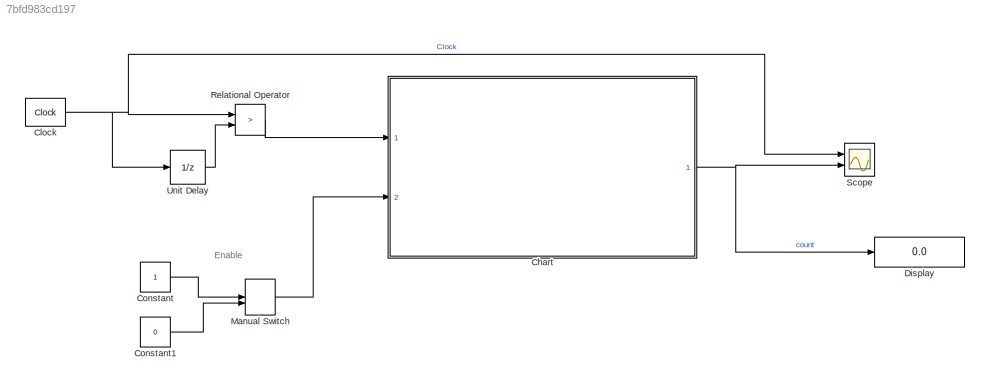
MODEL slx_7bfd983cd197
KIND model
CONFIG AbsTol = auto
CONFIG EnableMultiTasking = off
CONFIG FixedStep = auto
CONFIG MaxStep = auto
CONFIG MinStep = auto
CONFIG RelTol = 1e-3
CONFIG SampleTimeConstraint = Unconstrained
CONFIG SolverName = VariableStepAuto
CONFIG StartTime = 0.0
CONFIG StopTime = 10.0
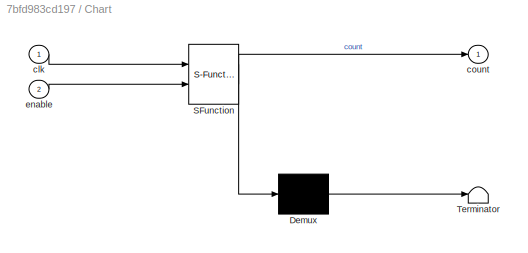
BLOCK [SubSystem] Chart
  ErrorFcn = Stateflow.Translate.translate
  PermitHierarchicalResolution = ExplicitOnly
  Ports = [2, 1]
  RequestExecContextInheritance = off
  SFBlockType = Chart
  TreatAsAtomicUnit = on
BLOCK [Demux] Chart/ Demux 
  Outputs = 1
  Ports = [1, 1]
BLOCK [S-Function] Chart/ SFunction 
  EnableBusSupport = on
  FunctionName = sf_sfun
  PortCounts = [2 2]
  Ports = [2, 2]
  SFcnIsStateOwnerBlock = off
  SFunctionDeploymentMode = off
  Tag = Stateflow S-Function 3
BLOCK [Terminator] Chart/ Terminator 
BLOCK [Inport] Chart/clk
BLOCK [Outport] Chart/count
BLOCK [Inport] Chart/enable
  Port = 2
BLOCK [Reference] Clock  REF=simulink_extras/Flip Flops/Clock
  Ports = [0, 1]
  SourceBlock = simulink_extras/Flip Flops/Clock
  SourceProductBaseCode = SL
  SourceType = Digital clock
BLOCK [Constant] Constant
BLOCK [Constant] Constant1
  Value = 0
BLOCK [Display] Display
  Decimation = 1
  Ports = [1]
BLOCK [ManualSwitch] Manual Switch
BLOCK [RelationalOperator] Relational Operator
  InputSameDT = off
  Operator = >
  OutDataTypeStr = boolean
  Ports = [2, 1]
  RndMeth = Simplest
BLOCK [Scope] Scope
  Floating = off
  NumInputPorts = 2
  Ports = [2]
  ScopeSpecificationString = Simulink.scopes.TimeScopeBlockCfg('CurrentConfiguration', extmgr.ConfigurationSet(extmgr.Configuration('Core','General UI',true),extmgr.Configuration('Core','Source UI',true),extmgr.Configuration('Sources','WiredSimulink',true),extmgr.Configuration('Visuals','Time Domain',true,'SerializedDisplays',{struct('MinYLimReal','-0.125','MaxYLimReal','1.125','YLabelReal','','MinYLimMag','0.00000','MaxYLimM...<+1951ch>
BLOCK [UnitDelay] Unit Delay
  HasFrameUpgradeWarning = on
  SampleTime = -1
ANNOTATION (root): Enable
NET Chart:1 -> Display:1, Scope:2
NET Clock:1 -> Relational Operator:1, Scope:1, Unit Delay:1
LINE Constant1:1 -> Manual Switch:2
LINE Constant:1 -> Manual Switch:1
LINE Manual Switch:1 -> Chart:2
LINE Relational Operator:1 -> Chart:1
LINE Unit Delay:1 -> Relational Operator:2
note: NET lines group one-source signal fan-out (src -> all destinations, sorted); 1:1 wires keep LINE
CHART Chart states=7 transitions=9
  STATE_LABEL 'clock\nen:\ncount=0;\n'
  STATE_LABEL 'Counter'
  STATE_LABEL 'State1\nen:\nQ3=0;\nQ2=0;\nQ1=0;\n'
  STATE_LABEL 'state5\nen:\nQ3=1;\nQ2=0;\nQ1=0;'
  STATE_LABEL 'state2\nen:\nQ3=0;\nQ2=0;\nQ1=1;'
  STATE_LABEL 'state4\nen:\nQ3=0;\nQ2=1;\nQ1=1;'
  STATE_LABEL 'state3\nen:\nQ3=0;\nQ2=1;\nQ1=0;'
  STATE_LABEL '[clk==1]{count=Q3*4+Q2*2+Q1}'
  STATE_LABEL '[clk==1]{count=Q3*4+Q2*2+Q1}'
  STATE_LABEL '[clk==1]{count=Q3*4+Q2*2+Q1}'
  STATE_LABEL '[clk==1]{count=Q3*4+Q2*2+Q1}'
  STATE_LABEL '[clk==1]{count=Q3*4+Q2*2+Q1}'
  STATE_LABEL 'State1\nen:\nQ3=0;\nQ2=0;\nQ1=0;\n'
  STATE_LABEL 'state5\nen:\nQ3=1;\nQ2=0;\nQ1=0;'
  STATE_LABEL 'state2\nen:\nQ3=0;\nQ2=0;\nQ1=1;'
  STATE_LABEL 'state4\nen:\nQ3=0;\nQ2=1;\nQ1=1;'
  STATE_LABEL 'state3\nen:\nQ3=0;\nQ2=1;\nQ1=0;'
CHART  states=0 transitions=0
